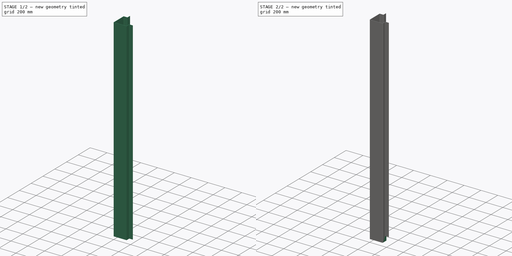
[diagram: build sequence overview — one tinted view per stage of 2, left to right]
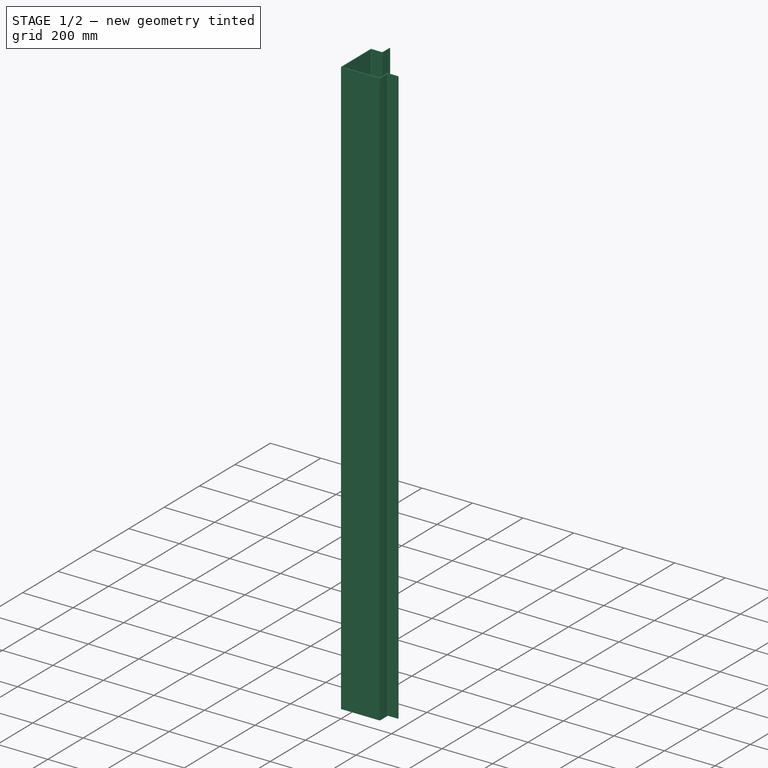
[diagram: stage 1 of 2 — iso view after this stage's code; geometry added in this stage tinted green]
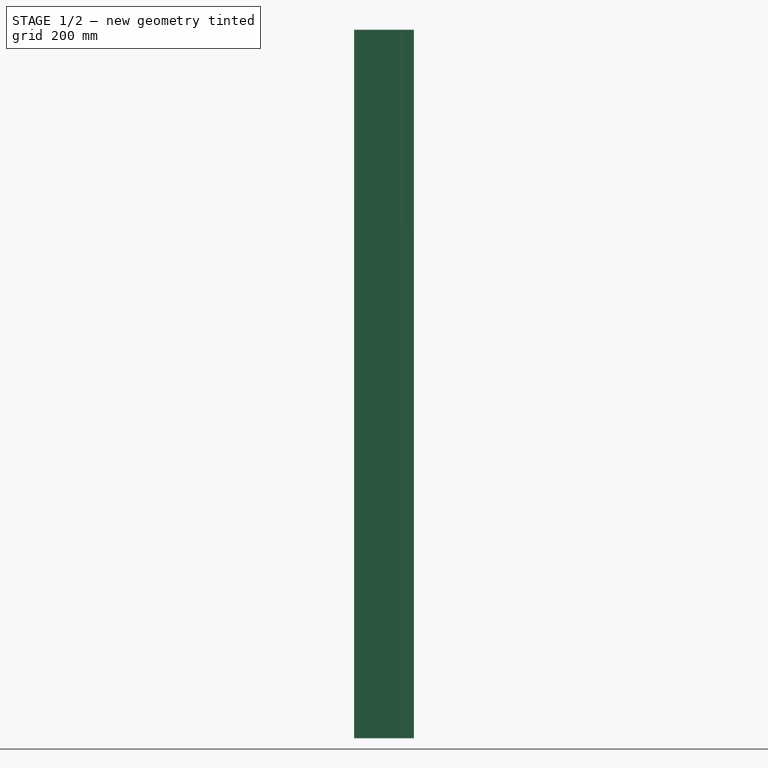
[diagram: stage 1 of 2 — front view after this stage's code; geometry added in this stage tinted green]
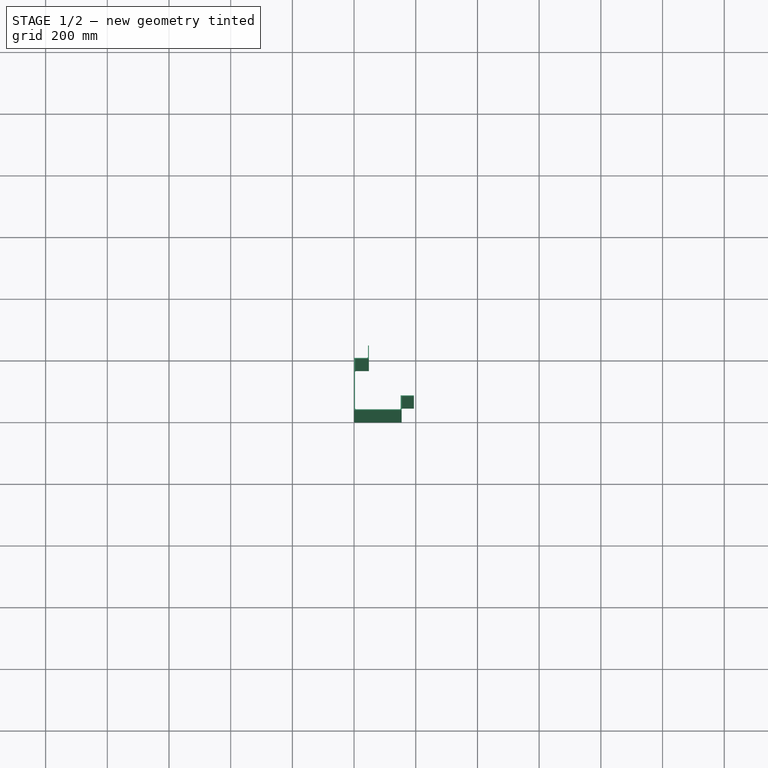
[diagram: stage 1 of 2 — top view after this stage's code; geometry added in this stage tinted green]
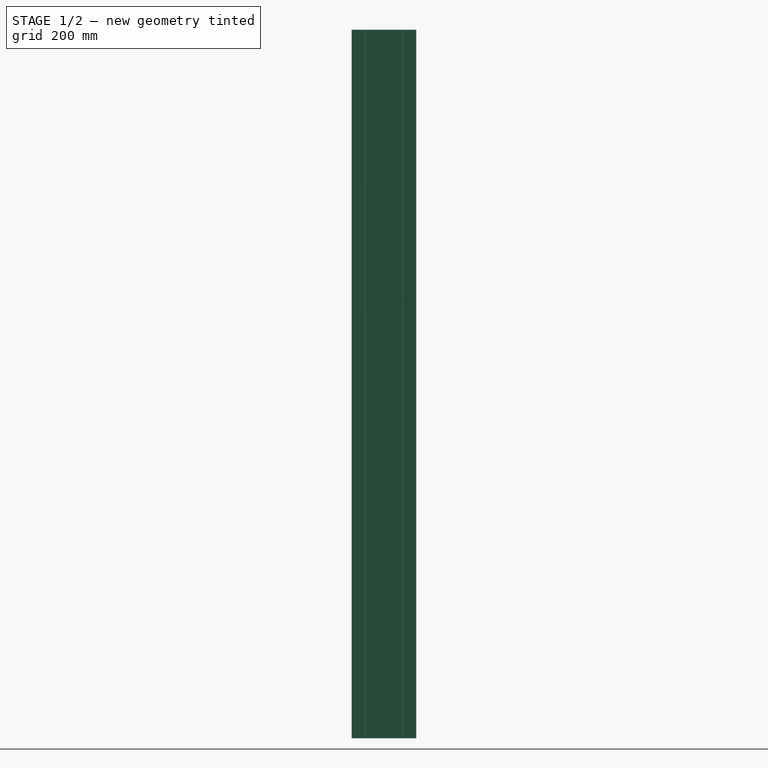
[diagram: stage 1 of 2 — right view after this stage's code; geometry added in this stage tinted green]
FCSTD DOCUMENT  (FreeCAD 0.18R4 (GitTag))
Label: back-member_vertical
License: All rights reserved
LicenseURL: http://en.wikipedia.org/wiki/All_rights_reserved
objects: Sketcher::SketchObject×2, PartDesign::Pad×2, PartDesign::Fillet×2, PartDesign::Body×1
note: 9 computed .brp shape members not serialized (recipe doc carries the construction recipe); baked Part::Feature solids carry a one-line shape summary decoded from their .brp

FEATURE [Sketcher::SketchObject] Sketch
  MapMode = 5
  Support = -> [XY_Plane]
  sketch-geometry (14):
    g0: LineSegment StartX=0 StartY=169.5 StartZ=0 EndX=45 EndY=169.5 EndZ=0
    g1: LineSegment StartX=154 StartY=45 StartZ=0 EndX=154 EndY=0 EndZ=0
    g2: LineSegment StartX=154 StartY=0 StartZ=0 EndX=0 EndY=0 EndZ=0
    g3: LineSegment StartX=0 StartY=0 StartZ=0 EndX=0 EndY=169.5 EndZ=0
    g4: LineSegment StartX=3 StartY=166.5 StartZ=0 EndX=48 EndY=166.5 EndZ=0
    g5: LineSegment StartX=151 StartY=48 StartZ=0 EndX=151 EndY=3 EndZ=0
    g6: LineSegment StartX=151 StartY=3 StartZ=0 EndX=3 EndY=3 EndZ=0
    g7: LineSegment StartX=3 StartY=3 StartZ=0 EndX=3 EndY=166.5 EndZ=0
    g8: LineSegment StartX=48 StartY=166.5 StartZ=0 EndX=48 EndY=209.5 EndZ=0
    g9: LineSegment StartX=48 StartY=209.5 StartZ=0 EndX=45 EndY=209.5 EndZ=0
    g10: LineSegment StartX=45 StartY=209.5 StartZ=0 EndX=45 EndY=169.5 EndZ=0
    g11: LineSegment StartX=154 StartY=45 StartZ=0 EndX=194 EndY=45 EndZ=0
    g12: LineSegment StartX=194 StartY=45 StartZ=0 EndX=194 EndY=48 EndZ=0
    g13: LineSegment StartX=194 StartY=48 StartZ=0 EndX=151 EndY=48 EndZ=0
  constraints (41):
    c: Coincident(g1,g2)
    c: Coincident(g2,g3)
    c: Coincident(g3,g0)
    c: Horizontal(g0)
    c: Horizontal(g2)
    c: Vertical(g1)
    c: Vertical(g3)
    c: Coincident(g5,g6)
    c: Coincident(g6,g7)
    c: Coincident(g7,g4)
    c: Horizontal(g4)
    c: Horizontal(g6)
    c: Vertical(g5)
    c: Vertical(g7)
    c: DistanceX(g0,g4) = 3
    c: DistanceY(g1,g5) = 3
    c: Coincident(g8,g9)
    c: Coincident(g9,g10)
    c: Horizontal(g9)
    c: Vertical(g8)
    c: Vertical(g10)
    c: Coincident(g11,g12)
    c: Coincident(g12,g13)
    c: Horizontal(g11)
    c: Horizontal(g13)
    c: Vertical(g12)
    c: DistanceY(g12,g12) = 3
    c: Coincident(g1,g11)
    c: DistanceX(g9,g9) = 3
    c: DistanceY(g4,g10) = 3
    c: DistanceY(g8,g8) = 43
    c: Coincident(g8,g4)
    c: DistanceY(g3,g3) = 169.5
    c: DistanceX(g2,g2) = 154
    c: Coincident(g13,g5)
    c: DistanceX(g5,g1) = 3
    c: DistanceX(g13,g13) = 43
    c: DistanceY(g1,g5) = 48
    c: DistanceX(g0,g4) = 48
    c: Coincident(g2,g-1)
    c: Coincident(g0,g10)
FEATURE [PartDesign::Pad] Pad
  Length = 2297
  Length2 = 100
  Midplane = true
  Profile = -> Sketch
  Type = 0
FEATURE [PartDesign::Fillet] Fillet
  Base = -> Pad [Edge1,Edge23,Edge29,Edge11,Edge26]
  BaseFeature = -> Pad
  Radius = 3
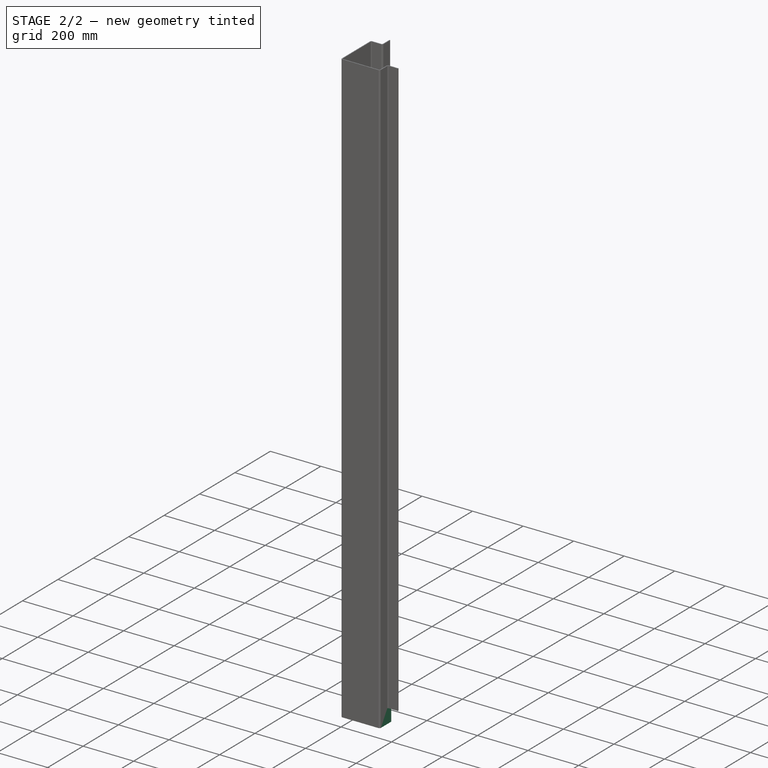
[diagram: stage 2 of 2 — iso view after this stage's code; geometry added in this stage tinted green]
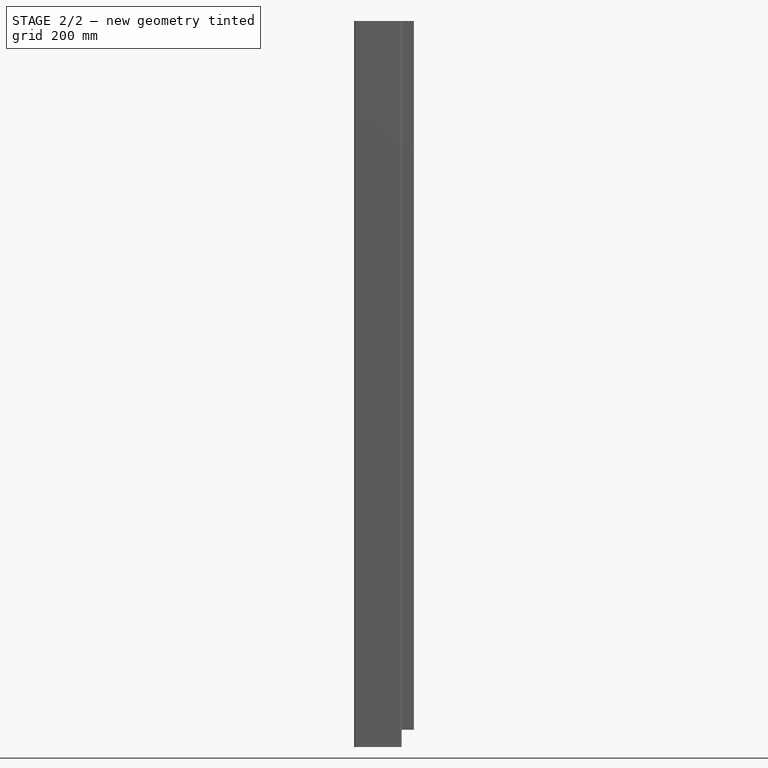
[diagram: stage 2 of 2 — front view after this stage's code; geometry added in this stage tinted green]
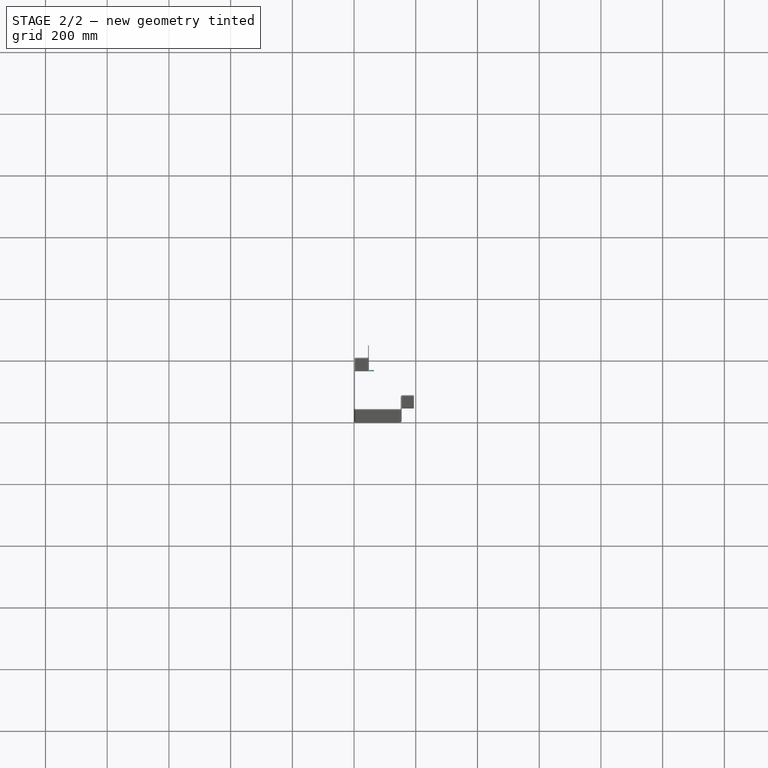
[diagram: stage 2 of 2 — top view after this stage's code; geometry added in this stage tinted green]
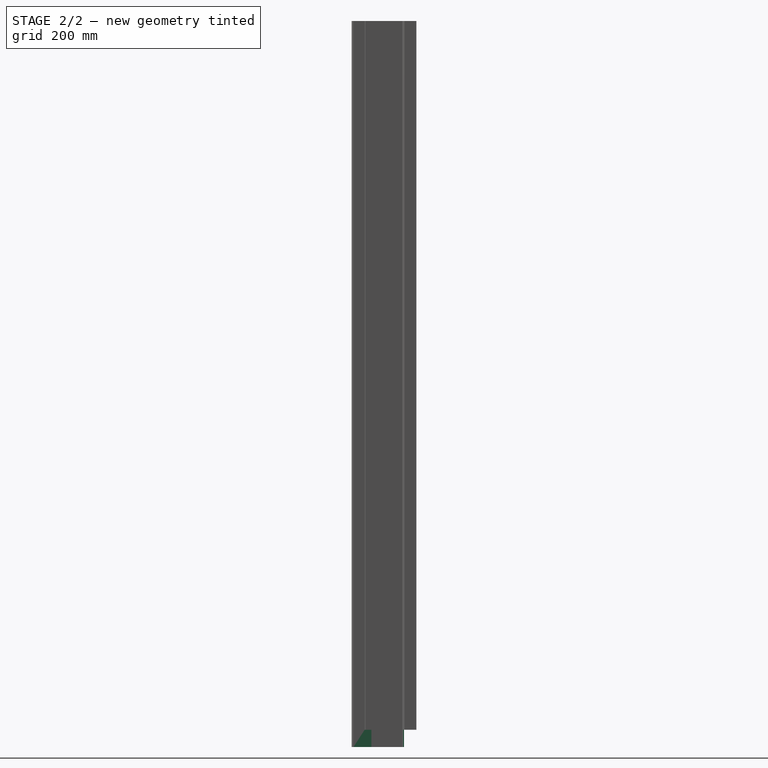
[diagram: stage 2 of 2 — right view after this stage's code; geometry added in this stage tinted green]
FEATURE [PartDesign::Fillet] Fillet001
  Base = -> Fillet [Edge47,Edge3,Edge54,Edge44,Edge25]
  BaseFeature = -> Fillet
  Radius = 6
FEATURE [Sketcher::SketchObject] Sketch001
  ExternalGeometry = -> [Fillet001]
  MapMode = 5
  Placement = pos=(0,0,-1148.5) rot=(1,0,0;3.14159rad)
  Support = -> [Fillet001]
  sketch-geometry (16):
    g0: LineSegment StartX=6 StartY=0 StartZ=0 EndX=148 EndY=0 EndZ=0
    g1: LineSegment StartX=154 StartY=-6 StartZ=0 EndX=154 EndY=-64 EndZ=0
    g2: LineSegment StartX=64 StartY=-169.5 StartZ=0 EndX=6 EndY=-169.5 EndZ=0
    g3: LineSegment StartX=0 StartY=-163.5 StartZ=0 EndX=0 EndY=-6 EndZ=0
    g4: LineSegment StartX=6 StartY=-3 StartZ=0 EndX=148 EndY=-3 EndZ=0
    g5: LineSegment StartX=151 StartY=-6 StartZ=0 EndX=151 EndY=-64 EndZ=0
    g6: LineSegment StartX=64 StartY=-166.5 StartZ=0 EndX=6 EndY=-166.5 EndZ=0
    g7: LineSegment StartX=3 StartY=-163.5 StartZ=0 EndX=3 EndY=-6 EndZ=0
    g8: LineSegment StartX=151 StartY=-64 StartZ=0 EndX=154 EndY=-64 EndZ=0
    g9: LineSegment StartX=64 StartY=-169.5 StartZ=0 EndX=64 EndY=-166.5 EndZ=0
    g10: ArcOfCircle CenterX=148 CenterY=-6 CenterZ=0 NormalX=0 NormalY=0 NormalZ=1 AngleXU=0 Radius=6 StartAngle=0 EndAngle=1.5708
    g11: ArcOfCircle CenterX=148 CenterY=-6 CenterZ=0 NormalX=0 NormalY=0 NormalZ=1 AngleXU=0 Radius=3 StartAngle=0 EndAngle=1.5708
    g12: ArcOfCircle CenterX=6 CenterY=-6 CenterZ=0 NormalX=0 NormalY=0 NormalZ=1 AngleXU=0 Radius=6 StartAngle=1.5708 EndAngle=3.14159
    g13: ArcOfCircle CenterX=6 CenterY=-6 CenterZ=0 NormalX=0 NormalY=0 NormalZ=1 AngleXU=0 Radius=3 StartAngle=1.5708 EndAngle=3.14159
    g14: ArcOfCircle CenterX=6 CenterY=-163.5 CenterZ=0 NormalX=0 NormalY=0 NormalZ=1 AngleXU=0 Radius=3 StartAngle=3.14159 EndAngle=4.71239
    g15: ArcOfCircle CenterX=6 CenterY=-163.5 CenterZ=0 NormalX=0 NormalY=0 NormalZ=1 AngleXU=0 Radius=6 StartAngle=3.14159 EndAngle=4.71239
  constraints (42):
    c: Horizontal(g0)
    c: Horizontal(g2)
    c: Vertical(g1)
    c: Vertical(g3)
    c: Horizontal(g4)
    c: Horizontal(g6)
    c: Vertical(g5)
    c: Vertical(g7)
    c: Horizontal(g8)
    c: Vertical(g9)
    c: Coincident(g8,g5)
    c: Coincident(g9,g6)
    c: Coincident(g8,g1)
    c: Coincident(g9,g2)
    c: PointOnObject(g1,g-3)
    c: PointOnObject(g5,g-4)
    c: PointOnObject(g6,g-10)
    c: PointOnObject(g2,g-9)
    c: DistanceX(g-10,g6) = 22
    c: DistanceY(g5,g-4) = 22
    c: Tangent(g0,g10) = 1.5708
    c: Tangent(g1,g10) = 1.5708
    c: Radius(g10) = 6
    c: PointOnObject(g0,g-6)
    c: Tangent(g4,g11) = 1.5708
    c: Tangent(g5,g11) = 1.5708
    c: Radius(g11) = 3
    c: PointOnObject(g4,g-5)
    c: Tangent(g0,g12) = 1.5708
    c: Tangent(g3,g12) = 1.5708
    c: Tangent(g4,g13) = 1.5708
    c: Tangent(g7,g13) = 1.5708
    c: Radius(g12) = 6
    c: Radius(g13) = 3
    c: PointOnObject(g7,g-8)
    c: PointOnObject(g3,g-7)
    c: Tangent(g7,g14) = 1.5708
    c: Tangent(g6,g14) = 1.5708
    c: Tangent(g3,g15) = 1.5708
    c: Tangent(g2,g15) = 1.5708
    c: Radius(g14) = 3
    c: Radius(g15) = 6
FEATURE [PartDesign::Pad] Pad001
  BaseFeature = -> Fillet001
  Length = 56
  Length2 = 100
  Profile = -> Sketch001
  Refine = true
  Type = 0
FEATURE [PartDesign::Body] Body
  Group = -> [Sketch,Pad,Fillet,Fillet001,Sketch001,Pad001]
  Origin = -> Origin
  Tip = -> Pad001
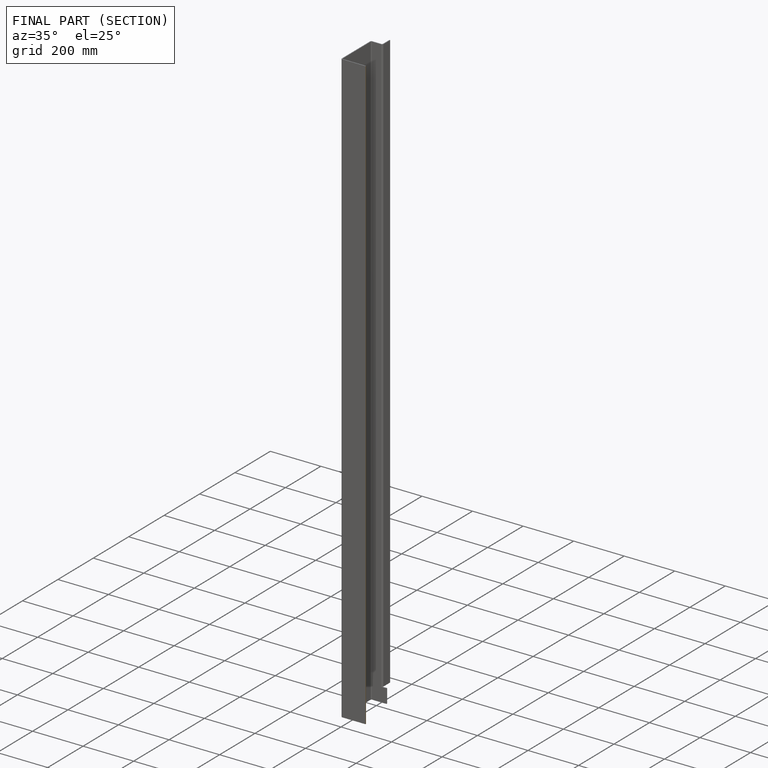
[diagram: finished part — half-section view (interior)]
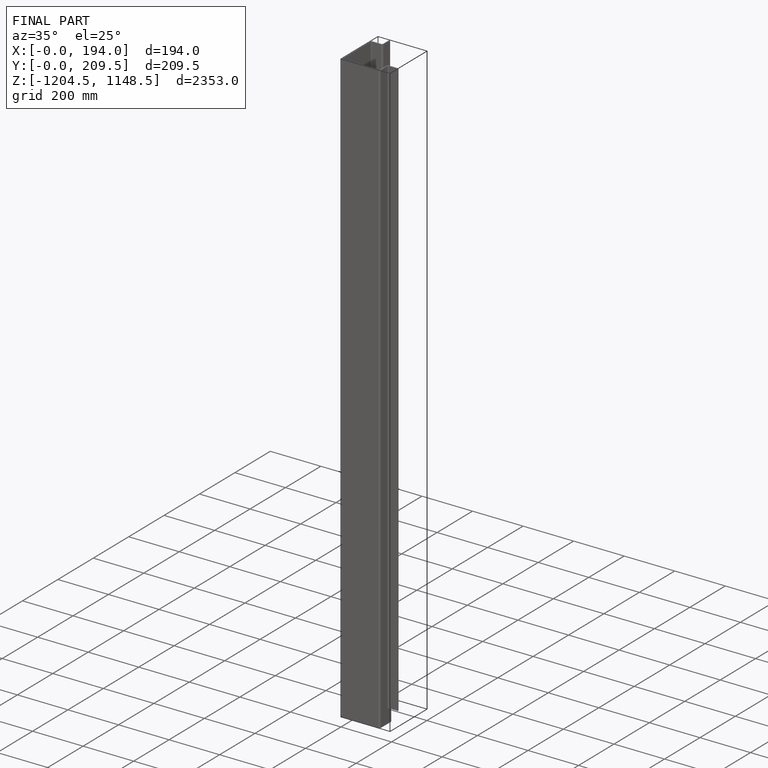
[diagram: finished part — iso view with bounding-box wireframe]
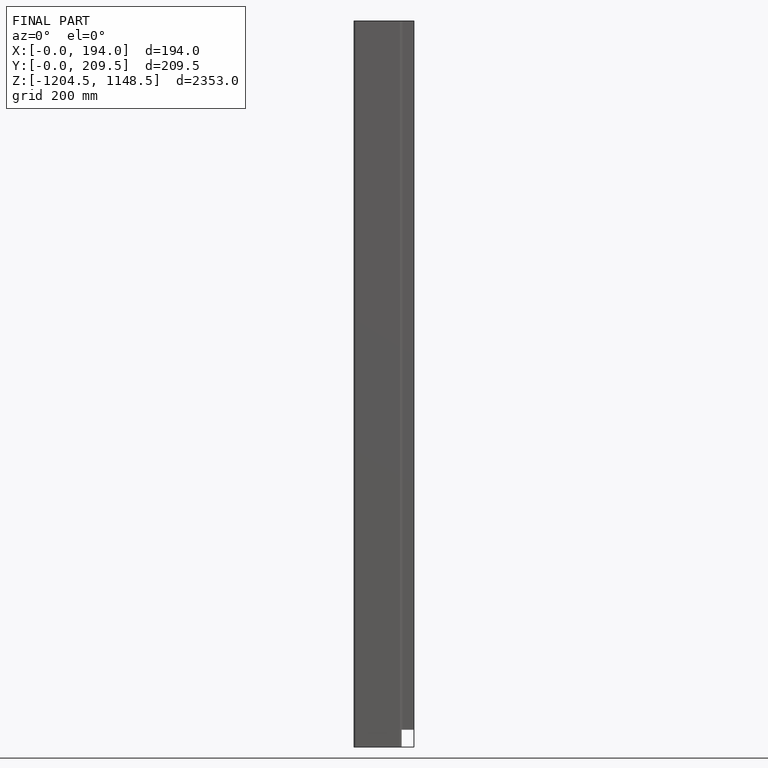
[diagram: finished part — front view with bounding-box wireframe]
